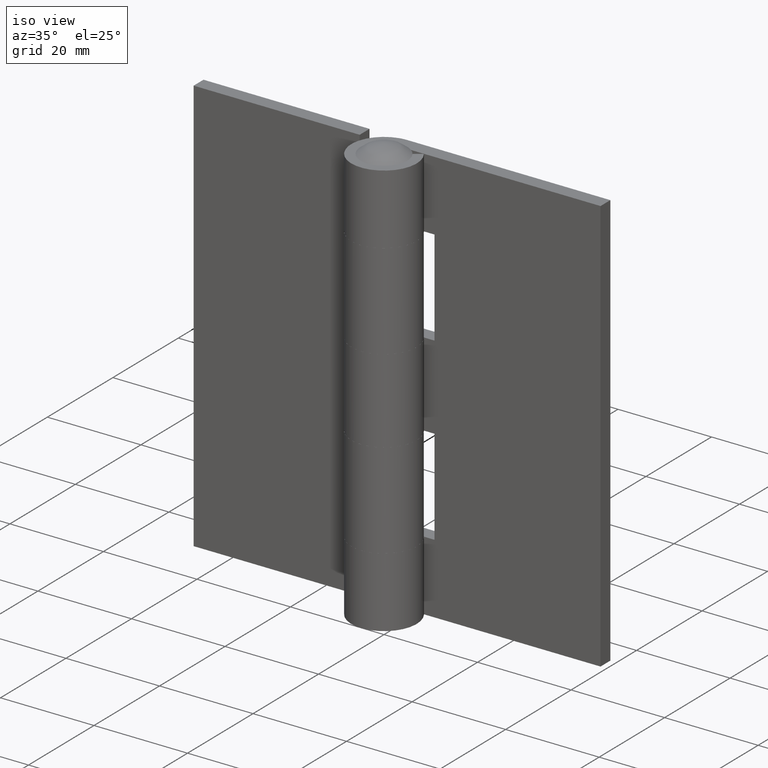
[diagram: clean part render]
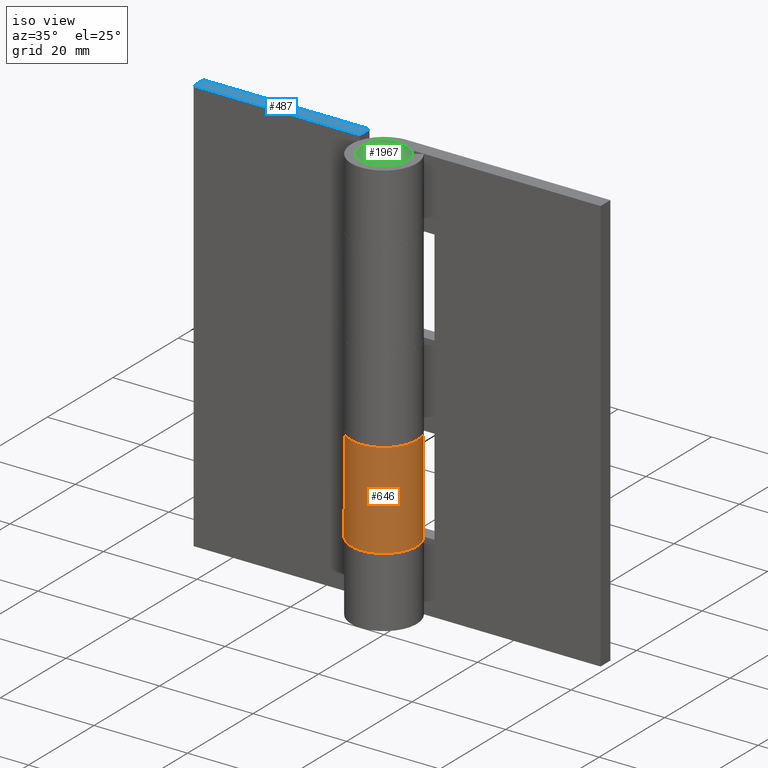
[diagram: same view with three faces highlighted in distinct colors, each labeled with its STEP entity id]
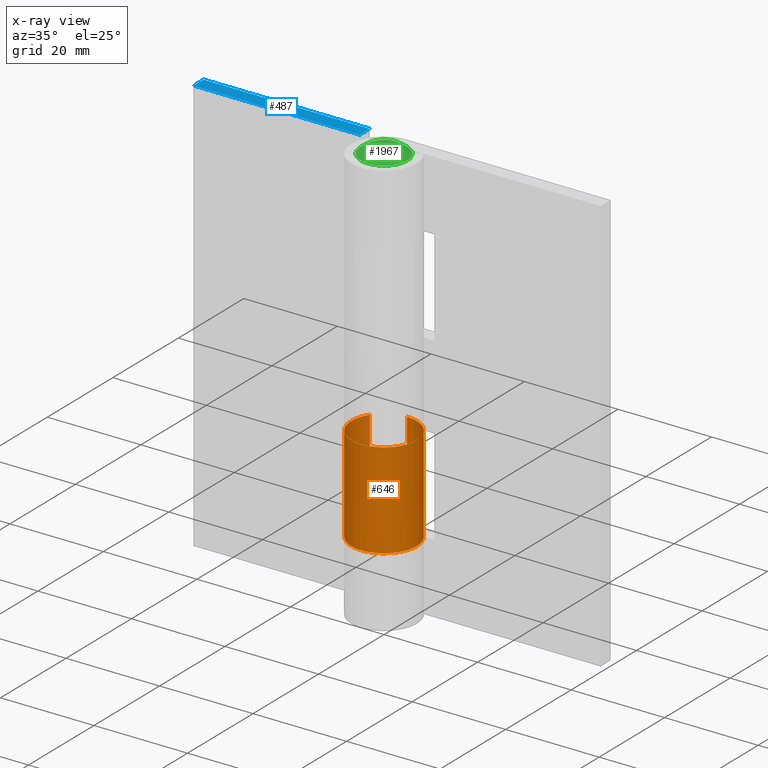
[diagram: x-ray of the same camera — body ghosted, the three highlighted faces saturated]
A machine part, iso view with three faces highlighted in distinct colors.
The next image is the same camera in x-ray (body ghosted, the three faces saturated) — at least one of them is partly hidden behind the body in this view.
Their STEP definitions:

[orange] entity #646 — the highlighted face is a freeform B-spline surface patch.
#51=CARTESIAN_POINT('',(0.0,7.0,35.500006999999997));
#52=VERTEX_POINT('',#51);
#93=CARTESIAN_POINT('',(-5.779057016503650,3.950000000000000,35.500006999999997));
#94=VERTEX_POINT('',#93);
#100=CARTESIAN_POINT('',(0.0,7.0,35.500006999999997));
#101=CARTESIAN_POINT('',(5.477678864768966,7.0,35.500006999999997));
#102=CARTESIAN_POINT('',(6.794668204481638,1.682998511884748,35.500006999999997));
#103=CARTESIAN_POINT('',(8.111657544194312,-3.634002976230510,35.500006999999997));
#104=CARTESIAN_POINT('',(3.267261850540910,-6.190718859712496,35.500006999999997));
#105=CARTESIAN_POINT('',(-1.577133843112491,-8.747434743194484,35.500006999999997));
#106=CARTESIAN_POINT('',(-5.223583395225028,-4.659847262854157,35.500006999999997));
#107=CARTESIAN_POINT('',(-8.870032947337561,-0.572259782513834,35.500006999999997));
#108=CARTESIAN_POINT('',(-5.779057016503646,3.949999999999997,35.500006999999997));
#116=(BOUNDED_CURVE()B_SPLINE_CURVE(2,(#100,#101,#102,#103,#104,#105,#106,#107,#108),.UNSPECIFIED.,.F.,.U.)B_SPLINE_CURVE_WITH_KNOTS((3,2,2,2,3),(0.0,0.250000000000000,0.500000000000000,0.750000000000000,1.0),.UNSPECIFIED.)CURVE()GEOMETRIC_REPRESENTATION_ITEM()RATIONAL_B_SPLINE_CURVE((1.0,0.787536779725455,1.0,0.787536779725455,1.0,0.787536779725455,1.0,0.787536779725455,1.0))REPRESENTATION_ITEM(''));
#117=EDGE_CURVE('',#52,#94,#116,.T.);
#234=CARTESIAN_POINT('',(0.0,7.0,15.0));
#235=VERTEX_POINT('',#234);
#241=CARTESIAN_POINT('',(-5.779057016503650,3.950000000000000,15.0));
#242=VERTEX_POINT('',#241);
#243=CARTESIAN_POINT('',(-5.779057016503644,3.950000000000000,15.0));
#244=CARTESIAN_POINT('',(-8.870032947337561,-0.572259782513830,15.0));
#245=CARTESIAN_POINT('',(-5.223583395225030,-4.659847262854154,15.0));
#246=CARTESIAN_POINT('',(-1.577133843112500,-8.747434743194480,15.0));
#247=CARTESIAN_POINT('',(3.267261850540901,-6.190718859712502,15.0));
#248=CARTESIAN_POINT('',(8.111657544194310,-3.634002976230521,15.0));
#249=CARTESIAN_POINT('',(6.794668204481638,1.682998511884744,15.0));
#250=CARTESIAN_POINT('',(5.477678864768969,7.000000000000001,15.0));
#251=CARTESIAN_POINT('',(0.0,7.0,15.0));
#259=(BOUNDED_CURVE()B_SPLINE_CURVE(2,(#243,#244,#245,#246,#247,#248,#249,#250,#251),.UNSPECIFIED.,.F.,.U.)B_SPLINE_CURVE_WITH_KNOTS((3,2,2,2,3),(0.0,0.250000000000000,0.500000000000000,0.750000000000000,1.0),.UNSPECIFIED.)CURVE()GEOMETRIC_REPRESENTATION_ITEM()RATIONAL_B_SPLINE_CURVE((1.0,0.787536779725455,1.0,0.787536779725455,1.0,0.787536779725455,1.0,0.787536779725455,1.0))REPRESENTATION_ITEM(''));
#260=EDGE_CURVE('',#242,#235,#259,.T.);
#587=CARTESIAN_POINT('',(-5.779057016503650,3.950000000000000,35.500006999999997));
#588=CARTESIAN_POINT('',(-5.779057016503650,3.950000000000000,15.0));
#589=QUASI_UNIFORM_CURVE('',1,(#587,#588),.UNSPECIFIED.,.F.,.U.);
#590=EDGE_CURVE('',#94,#242,#589,.T.);
#614=CARTESIAN_POINT('',(-5.626998024320518,4.163759507259388,36.012507175000003));
#615=CARTESIAN_POINT('',(-5.626998024320518,4.163759507259388,14.474687320625000));
#616=CARTESIAN_POINT('',(-10.924531416322063,-2.995445984458665,36.012507175000003));
#617=CARTESIAN_POINT('',(-10.924531416322063,-2.995445984458665,14.474687320625002));
#618=CARTESIAN_POINT('',(-2.716362873584171,-6.451462837141163,36.012507175000003));
#619=CARTESIAN_POINT('',(-2.716362873584171,-6.451462837141163,14.474687320625000));
#620=CARTESIAN_POINT('',(5.491805669153720,-9.907479689823660,36.012507175000003));
#621=CARTESIAN_POINT('',(5.491805669153720,-9.907479689823660,14.474687320625002));
#622=CARTESIAN_POINT('',(6.910603791821615,-1.115148076472661,36.012507175000003));
#623=CARTESIAN_POINT('',(6.910603791821615,-1.115148076472661,14.474687320625000));
#624=CARTESIAN_POINT('',(8.329401914489507,7.677183536878339,36.012507175000003));
#625=CARTESIAN_POINT('',(8.329401914489507,7.677183536878339,14.474687320625002));
#626=CARTESIAN_POINT('',(-0.549213670094910,6.978421336131893,36.012507175000003));
#627=CARTESIAN_POINT('',(-0.549213670094910,6.978421336131893,14.474687320625000));
#635=(BOUNDED_SURFACE()B_SPLINE_SURFACE(1,2,((#614,#616,#618,#620,#622,#624,#626),(#615,#617,#619,#621,#623,#625,#627)),.UNSPECIFIED.,.F.,.F.,.U.)B_SPLINE_SURFACE_WITH_KNOTS((2,2),(3,2,2,3),(0.0,21.537819854375009),(0.0,13.606136197411960,27.212272394823920,40.818408592235883),.UNSPECIFIED.)GEOMETRIC_REPRESENTATION_ITEM()RATIONAL_B_SPLINE_SURFACE(((1.0,0.617951097721073,1.0,0.617951097721073,1.0,0.617951097721073,1.0),(1.0,0.617951097721073,1.0,0.617951097721073,1.0,0.617951097721073,1.0)))REPRESENTATION_ITEM('')SURFACE());
#636=ORIENTED_EDGE('',*,*,#117,.T.);
#637=ORIENTED_EDGE('',*,*,#590,.T.);
#638=ORIENTED_EDGE('',*,*,#260,.T.);
#639=CARTESIAN_POINT('',(0.0,7.0,35.500006999999997));
#640=CARTESIAN_POINT('',(0.0,7.0,15.0));
#641=QUASI_UNIFORM_CURVE('',1,(#639,#640),.UNSPECIFIED.,.F.,.U.);
#642=EDGE_CURVE('',#52,#235,#641,.T.);
#643=ORIENTED_EDGE('',*,*,#642,.F.);
#644=EDGE_LOOP('',(#636,#637,#638,#643));
#645=FACE_OUTER_BOUND('',#644,.T.);
#646=ADVANCED_FACE('',(#645),#635,.T.);

[blue] entity #487 — the highlighted face is a freeform B-spline surface patch.
#410=CARTESIAN_POINT('',(-8.000000000000101,7.0,89.000007000000011));
#411=VERTEX_POINT('',#410);
#417=CARTESIAN_POINT('',(-8.000000000000101,4.0,89.000007000000011));
#418=VERTEX_POINT('',#417);
#419=CARTESIAN_POINT('',(-8.000000000000101,4.0,89.000007000000011));
#420=CARTESIAN_POINT('',(-8.000000000000101,7.0,89.000007000000011));
#421=QUASI_UNIFORM_CURVE('',1,(#419,#420),.UNSPECIFIED.,.F.,.U.);
#422=EDGE_CURVE('',#418,#411,#421,.T.);
#446=CARTESIAN_POINT('',(-43.500000000000000,4.0,89.000007000000011));
#447=VERTEX_POINT('',#446);
#453=CARTESIAN_POINT('',(-43.500000000000000,7.0,89.000007000000011));
#454=VERTEX_POINT('',#453);
#455=CARTESIAN_POINT('',(-43.500000000000000,4.0,89.000007000000011));
#456=CARTESIAN_POINT('',(-43.500000000000000,7.0,89.000007000000011));
#457=QUASI_UNIFORM_CURVE('',1,(#455,#456),.UNSPECIFIED.,.F.,.U.);
#458=EDGE_CURVE('',#447,#454,#457,.T.);
#468=CARTESIAN_POINT('',(-45.273224931194122,3.850150005814582,89.000007000000011));
#469=CARTESIAN_POINT('',(-6.226774116621793,3.850150005814582,89.000007000000011));
#470=CARTESIAN_POINT('',(-45.273224931194122,7.149850074651689,89.000007000000011));
#471=CARTESIAN_POINT('',(-6.226774116621793,7.149850074651689,89.000007000000011));
#472=B_SPLINE_SURFACE_WITH_KNOTS('',1,1,((#468,#470),(#469,#471)),.UNSPECIFIED.,.F.,.F.,.U.,(2,2),(2,2),(0.0,39.046450814572317),(0.0,3.299700068837107),.UNSPECIFIED.);
#473=ORIENTED_EDGE('',*,*,#422,.T.);
#474=CARTESIAN_POINT('',(-43.500000000000000,7.0,89.000007000000011));
#475=CARTESIAN_POINT('',(-8.000000000000101,7.0,89.000007000000011));
#476=QUASI_UNIFORM_CURVE('',1,(#474,#475),.UNSPECIFIED.,.F.,.U.);
#477=EDGE_CURVE('',#454,#411,#476,.T.);
#478=ORIENTED_EDGE('',*,*,#477,.F.);
#479=ORIENTED_EDGE('',*,*,#458,.F.);
#480=CARTESIAN_POINT('',(-8.000000000000101,4.0,89.000007000000011));
#481=CARTESIAN_POINT('',(-43.500000000000000,4.0,89.000007000000011));
#482=QUASI_UNIFORM_CURVE('',1,(#480,#481),.UNSPECIFIED.,.F.,.U.);
#483=EDGE_CURVE('',#418,#447,#482,.T.);
#484=ORIENTED_EDGE('',*,*,#483,.F.);
#485=EDGE_LOOP('',(#473,#478,#479,#484));
#486=FACE_OUTER_BOUND('',#485,.T.);
#487=ADVANCED_FACE('',(#486),#472,.T.);

[green] entity #1967 — the highlighted face is a freeform B-spline surface patch.
#1896=CARTESIAN_POINT('',(-5.0,0.0,89.000007000000011));
#1897=VERTEX_POINT('',#1896);
#1898=CARTESIAN_POINT('',(5.0,0.0,89.000007000000011));
#1899=VERTEX_POINT('',#1898);
#1900=CARTESIAN_POINT('',(-5.0,0.0,89.000007000000011));
#1901=CARTESIAN_POINT('',(-5.000000000000001,5.000000000000001,89.000007000000011));
#1902=CARTESIAN_POINT('',(0.0,5.0,89.000007000000011));
#1903=CARTESIAN_POINT('',(5.000000000000001,5.000000000000001,89.000007000000011));
#1904=CARTESIAN_POINT('',(5.0,0.0,89.000007000000011));
#1912=(BOUNDED_CURVE()B_SPLINE_CURVE(2,(#1900,#1901,#1902,#1903,#1904),.UNSPECIFIED.,.F.,.U.)B_SPLINE_CURVE_WITH_KNOTS((3,2,3),(0.0,0.250000000000000,0.500000000000000),.UNSPECIFIED.)CURVE()GEOMETRIC_REPRESENTATION_ITEM()RATIONAL_B_SPLINE_CURVE((1.0,0.707106781186548,1.0,0.707106781186548,1.0))REPRESENTATION_ITEM(''));
#1913=EDGE_CURVE('',#1897,#1899,#1912,.T.);
#1915=CARTESIAN_POINT('',(5.0,0.0,89.000007000000011));
#1916=CARTESIAN_POINT('',(5.000000000000001,-5.000000000000001,89.000007000000011));
#1917=CARTESIAN_POINT('',(0.0,-5.0,89.000007000000011));
#1918=CARTESIAN_POINT('',(-5.000000000000001,-5.000000000000001,89.000007000000011));
#1919=CARTESIAN_POINT('',(-5.0,0.0,89.000007000000011));
#1927=(BOUNDED_CURVE()B_SPLINE_CURVE(2,(#1915,#1916,#1917,#1918,#1919),.UNSPECIFIED.,.F.,.U.)B_SPLINE_CURVE_WITH_KNOTS((3,2,3),(0.500000000000000,0.750000000000000,1.0),.UNSPECIFIED.)CURVE()GEOMETRIC_REPRESENTATION_ITEM()RATIONAL_B_SPLINE_CURVE((1.0,0.707106781186548,1.0,0.707106781186548,1.0))REPRESENTATION_ITEM(''));
#1928=EDGE_CURVE('',#1899,#1897,#1927,.T.);
#1939=CARTESIAN_POINT('',(-4.599007720262748,-4.599007720262749,86.953248479802468));
#1940=CARTESIAN_POINT('',(-2.672422819207121,-5.344845638414244,88.648488918056302));
#1941=CARTESIAN_POINT('',(2.672422776946061,-5.344845638414244,88.648488918056302));
#1942=CARTESIAN_POINT('',(4.599007667832447,-4.599007740560064,86.953248525936900));
#1943=CARTESIAN_POINT('',(-5.344845638414242,-2.672422819207123,88.648488918056302));
#1944=CARTESIAN_POINT('',(-3.189709721747949,-3.189709721747952,91.000006999999997));
#1945=CARTESIAN_POINT('',(3.189709671306637,-3.189709721747952,91.000006999999997));
#1946=CARTESIAN_POINT('',(5.344845581306643,-2.672422832914383,88.648488980367659));
#1947=CARTESIAN_POINT('',(-5.344845638414242,2.672422776946059,88.648488918056302));
#1948=CARTESIAN_POINT('',(-3.189709721747949,3.189709671306633,91.000006999999997));
#1949=CARTESIAN_POINT('',(3.189709671306637,3.189709671306633,91.000006999999997));
#1950=CARTESIAN_POINT('',(5.344845581306643,2.672422790653319,88.648488980367659));
#1951=CARTESIAN_POINT('',(-4.599007740560066,4.599007667832449,86.953248525936957));
#1952=CARTESIAN_POINT('',(-2.672422832914382,5.344845581306640,88.648488980367659));
#1953=CARTESIAN_POINT('',(2.672422790653322,5.344845581306640,88.648488980367659));
#1954=CARTESIAN_POINT('',(4.599007688129766,4.599007688129763,86.953248572071445));
#1962=(BOUNDED_SURFACE()B_SPLINE_SURFACE(2,2,((#1939,#1943,#1947,#1951),(#1940,#1944,#1948,#1952),(#1941,#1945,#1949,#1953),(#1942,#1946,#1950,#1954)),.UNSPECIFIED.,.F.,.F.,.U.)B_SPLINE_SURFACE_WITH_KNOTS((3,1,3),(3,1,3),(0.0,5.816486073136392,11.632972054292260),(0.0,5.816486073136392,11.632972054292260),.UNSPECIFIED.)GEOMETRIC_REPRESENTATION_ITEM()RATIONAL_B_SPLINE_SURFACE(((1.387129535658060,1.193564767829030,1.193564767829030,1.387129529536085),(1.193564767829030,1.0,1.0,1.193564761707056),(1.193564767829030,1.0,1.0,1.193564761707056),(1.387129529536086,1.193564761707056,1.193564761707056,1.387129523414111)))REPRESENTATION_ITEM('')SURFACE());
#1963=ORIENTED_EDGE('',*,*,#1928,.F.);
#1964=ORIENTED_EDGE('',*,*,#1913,.F.);
#1965=EDGE_LOOP('',(#1963,#1964));
#1966=FACE_OUTER_BOUND('',#1965,.T.);
#1967=ADVANCED_FACE('',(#1966),#1962,.T.);